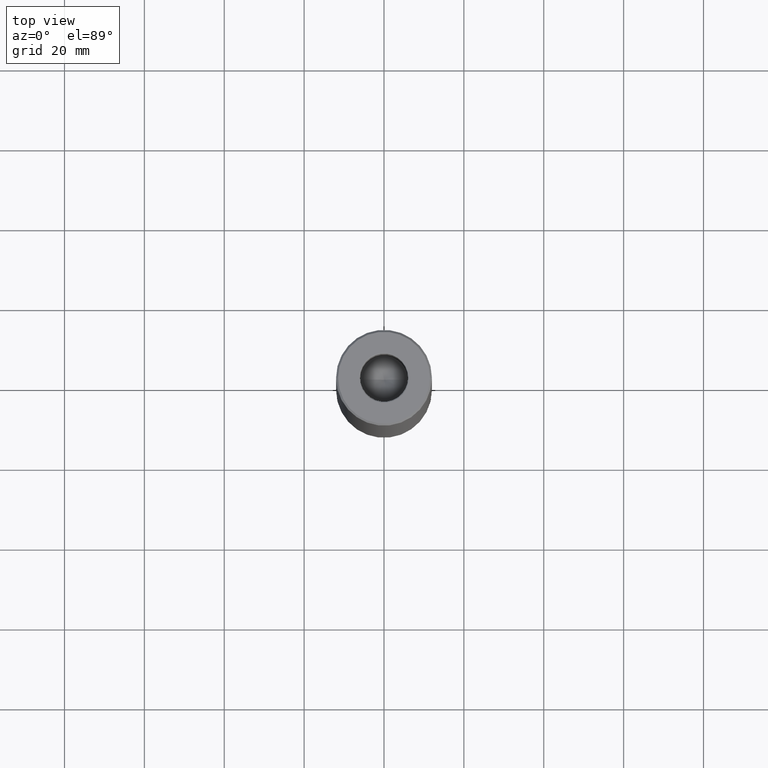
[diagram: clean part render]
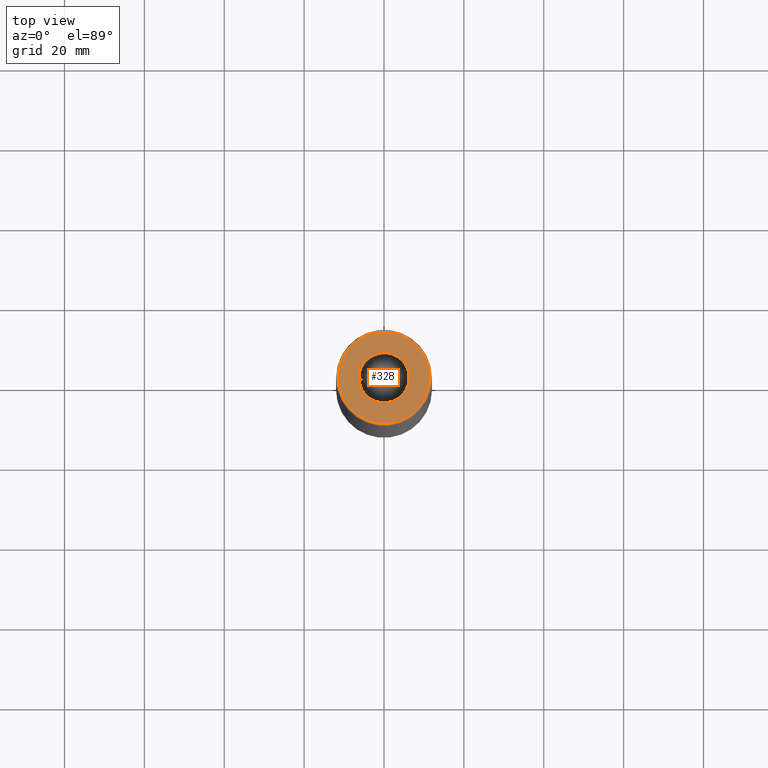
[diagram: same view with one face highlighted and labeled with its STEP entity id]
A machine part, top view. The second image highlights one B-rep face of the part: STEP entity #328.
In plain terms, the highlighted planar face has unit normal (0, -0, 1).
Its self-contained STEP definition (entity closure, byte-faithful):
#19 = ORIENTED_EDGE ( 'NONE', *, *, #361, .T. ) ;
#34 = CIRCLE ( 'NONE', #480, 11.50000000000003553 ) ;
#52 = CARTESIAN_POINT ( 'NONE',  ( 0.000000000000000000, 0.000000000000000000, 0.000000000000000000 ) ) ;
#53 = CARTESIAN_POINT ( 'NONE',  ( -6.299999999999996270, 7.715274834628322420E-16, 0.000000000000000000 ) ) ;
#65 = AXIS2_PLACEMENT_3D ( 'NONE', #169, #312, #66 ) ;
#66 = DIRECTION ( 'NONE',  ( 1.000000000000000000, 0.000000000000000000, 0.000000000000000000 ) ) ;
#71 = EDGE_LOOP ( 'NONE', ( #19, #529 ) ) ;
#116 = DIRECTION ( 'NONE',  ( 1.000000000000000000, 0.000000000000000000, 0.000000000000000000 ) ) ;
#128 = EDGE_CURVE ( 'NONE', #509, #195, #491, .T. ) ;
#168 = EDGE_LOOP ( 'NONE', ( #321, #430 ) ) ;
#169 = CARTESIAN_POINT ( 'NONE',  ( 0.000000000000000000, 0.000000000000000000, 0.000000000000000000 ) ) ;
#193 = DIRECTION ( 'NONE',  ( 1.000000000000000000, 0.000000000000000000, 0.000000000000000000 ) ) ;
#195 = VERTEX_POINT ( 'NONE', #495 ) ;
#200 = CIRCLE ( 'NONE', #319, 6.299999999999996270 ) ;
#208 = EDGE_CURVE ( 'NONE', #555, #368, #200, .T. ) ;
#210 = DIRECTION ( 'NONE',  ( 0.000000000000000000, 0.000000000000000000, -1.000000000000000000 ) ) ;
#220 = PLANE ( 'NONE',  #267 ) ;
#242 = EDGE_CURVE ( 'NONE', #368, #555, #636, .T. ) ;
#263 = CARTESIAN_POINT ( 'NONE',  ( 0.000000000000000000, 0.000000000000000000, 0.000000000000000000 ) ) ;
#266 = DIRECTION ( 'NONE',  ( -0.000000000000000000, -0.000000000000000000, 1.000000000000000000 ) ) ;
#267 = AXIS2_PLACEMENT_3D ( 'NONE', #553, #360, #116 ) ;
#312 = DIRECTION ( 'NONE',  ( 0.000000000000000000, 0.000000000000000000, -1.000000000000000000 ) ) ;
#314 = AXIS2_PLACEMENT_3D ( 'NONE', #467, #568, #193 ) ;
#319 = AXIS2_PLACEMENT_3D ( 'NONE', #52, #210, #499 ) ;
#321 = ORIENTED_EDGE ( 'NONE', *, *, #242, .T. ) ;
#322 = FACE_BOUND ( 'NONE', #168, .T. ) ;
#328 = ADVANCED_FACE ( 'NONE', ( #322, #511 ), #220, .T. ) ;
#360 = DIRECTION ( 'NONE',  ( 0.000000000000000000, -0.000000000000000000, 1.000000000000000000 ) ) ;
#361 = EDGE_CURVE ( 'NONE', #195, #509, #34, .T. ) ;
#368 = VERTEX_POINT ( 'NONE', #605 ) ;
#373 = CARTESIAN_POINT ( 'NONE',  ( 11.50000000000003553, 1.438959988998142132E-15, 0.000000000000000000 ) ) ;
#430 = ORIENTED_EDGE ( 'NONE', *, *, #208, .T. ) ;
#459 = DIRECTION ( 'NONE',  ( 1.000000000000000000, 0.000000000000000000, 0.000000000000000000 ) ) ;
#467 = CARTESIAN_POINT ( 'NONE',  ( 0.000000000000000000, 0.000000000000000000, 0.000000000000000000 ) ) ;
#480 = AXIS2_PLACEMENT_3D ( 'NONE', #263, #266, #459 ) ;
#491 = CIRCLE ( 'NONE', #314, 11.50000000000003553 ) ;
#495 = CARTESIAN_POINT ( 'NONE',  ( -11.50000000000003553, 0.000000000000000000, 0.000000000000000000 ) ) ;
#499 = DIRECTION ( 'NONE',  ( 1.000000000000000000, 0.000000000000000000, 0.000000000000000000 ) ) ;
#509 = VERTEX_POINT ( 'NONE', #373 ) ;
#511 = FACE_OUTER_BOUND ( 'NONE', #71, .T. ) ;
#529 = ORIENTED_EDGE ( 'NONE', *, *, #128, .T. ) ;
#553 = CARTESIAN_POINT ( 'NONE',  ( 0.000000000000000000, 0.000000000000000000, 0.000000000000000000 ) ) ;
#555 = VERTEX_POINT ( 'NONE', #53 ) ;
#568 = DIRECTION ( 'NONE',  ( -0.000000000000000000, -0.000000000000000000, 1.000000000000000000 ) ) ;
#605 = CARTESIAN_POINT ( 'NONE',  ( 6.299999999999996270, 0.000000000000000000, 0.000000000000000000 ) ) ;
#636 = CIRCLE ( 'NONE', #65, 6.299999999999996270 ) ;